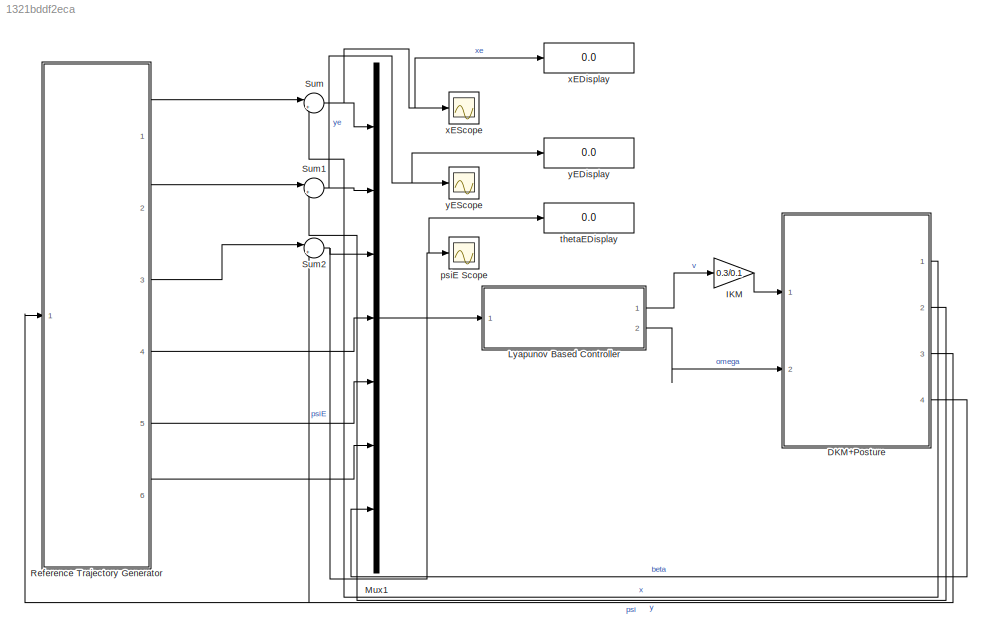
MODEL slx_1321bddf2eca
KIND model
CONFIG AbsTol = auto
CONFIG FixedStep = 0.01
CONFIG MaxStep = auto
CONFIG MinStep = auto
CONFIG RelTol = 1e-3
CONFIG SampleTimeConstraint = Unconstrained
CONFIG Solver = ode3
CONFIG SolverMode = Auto
CONFIG SolverName = ode3
CONFIG StartTime = 0.0
CONFIG StopTime = 50
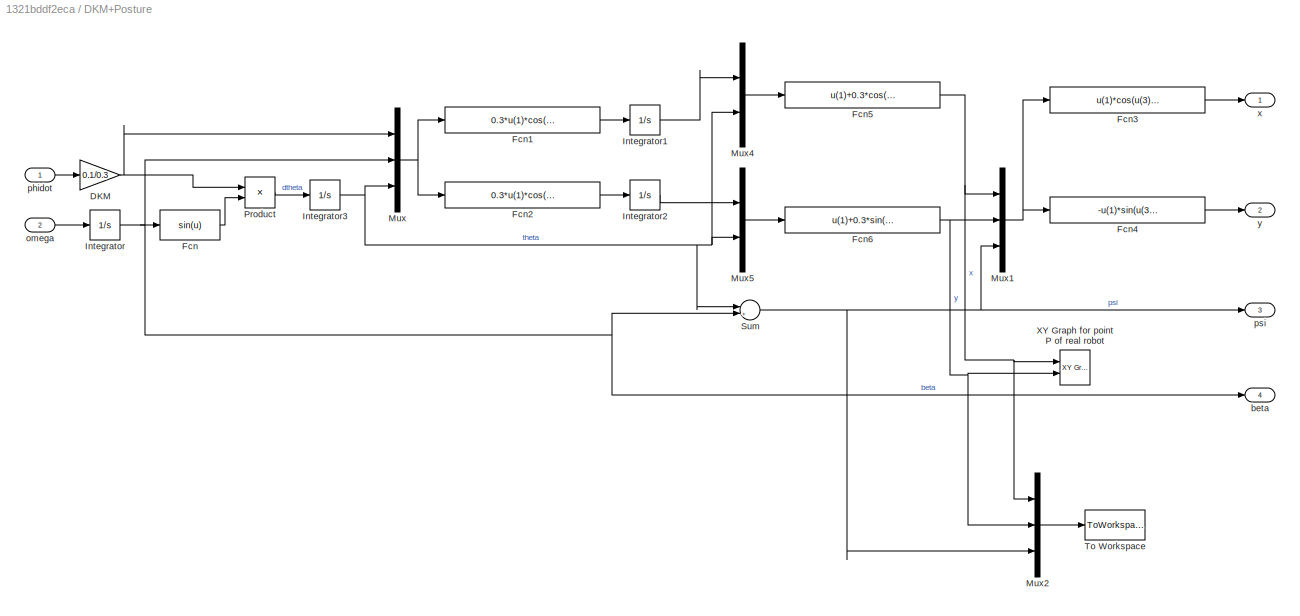
BLOCK [SubSystem] DKM+Posture
  Ports = [2, 4]
  RequestExecContextInheritance = off
BLOCK [Gain] DKM+Posture/DKM
  Gain = 0.1/0.3
  OutDataTypeStr = Inherit: Inherit via internal rule
  ParamDataTypeStr = Inherit: Inherit via internal rule
  SaturateOnIntegerOverflow = off
BLOCK [Fcn] DKM+Posture/Fcn
  Expr = sin(u)
BLOCK [Fcn] DKM+Posture/Fcn1
  Expr = 0.3*u(1)*cos(u(2))*cos(u(3))
BLOCK [Fcn] DKM+Posture/Fcn2
  Expr = 0.3*u(1)*cos(u(2))*sin(u(3))
BLOCK [Fcn] DKM+Posture/Fcn3
  Expr = u(1)*cos(u(3))+u(2)*sin(u(3))+0.3
BLOCK [Fcn] DKM+Posture/Fcn4
  Expr = -u(1)*sin(u(3))+u(2)*cos(u(3))
BLOCK [Fcn] DKM+Posture/Fcn5
  Expr = u(1)+0.3*cos(u(2))
BLOCK [Fcn] DKM+Posture/Fcn6
  Expr = u(1)+0.3*sin(u(2))
BLOCK [Integrator] DKM+Posture/Integrator
  Ports = [1, 1]
BLOCK [Integrator] DKM+Posture/Integrator1
  InitialCondition = 2.3
  Ports = [1, 1]
BLOCK [Integrator] DKM+Posture/Integrator2
  Ports = [1, 1]
BLOCK [Integrator] DKM+Posture/Integrator3
  InitialCondition = pi
  Ports = [1, 1]
BLOCK [Mux] DKM+Posture/Mux
  DisplayOption = bar
  Inputs = 3
  Ports = [3, 1]
BLOCK [Mux] DKM+Posture/Mux1
  DisplayOption = bar
  Inputs = 3
  Ports = [3, 1]
BLOCK [Mux] DKM+Posture/Mux2
  DisplayOption = bar
  Inputs = 3
  Ports = [3, 1]
BLOCK [Mux] DKM+Posture/Mux4
  DisplayOption = bar
  Inputs = 2
  Ports = [2, 1]
BLOCK [Mux] DKM+Posture/Mux5
  DisplayOption = bar
  Inputs = 2
  Ports = [2, 1]
BLOCK [Product] DKM+Posture/Product
  InputSameDT = off
  OutDataTypeStr = Inherit: Inherit via internal rule
  Ports = [2, 1]
  RndMeth = Floor
  SaturateOnIntegerOverflow = off
BLOCK [Sum] DKM+Posture/Sum
  IconShape = round
  InputSameDT = off
  Inputs = |++
  OutDataTypeStr = Inherit: Inherit via internal rule
  Ports = [2, 1]
  SaturateOnIntegerOverflow = off
BLOCK [ToWorkspace] DKM+Posture/To Workspace
  FixptAsFi = on
  MaxDataPoints = inf
  Ports = [1]
  SampleTime = -1
  Save2DSignal = 3-D array (concatenate along third dimension)
  VariableName = output
BLOCK [Reference] DKM+Posture/XY Graph for point P of real robot  REF=simulink/Sinks/XY Graph
  Ports = [2]
  SourceBlock = simulink/Sinks/XY Graph
  SourceType = XY scope.
  st = -1
  xmax = 2
  xmin = -2
  ymax = 2
  ymin = -2
BLOCK [Outport] DKM+Posture/beta
  IconDisplay = Port number
  Port = 4
BLOCK [Inport] DKM+Posture/omega
  IconDisplay = Port number
  Port = 2
BLOCK [Inport] DKM+Posture/phidot
  IconDisplay = Port number
BLOCK [Outport] DKM+Posture/psi
  IconDisplay = Port number
  Port = 3
BLOCK [Outport] DKM+Posture/x
  IconDisplay = Port number
BLOCK [Outport] DKM+Posture/y
  IconDisplay = Port number
  Port = 2
BLOCK [Gain] IKM
  Gain = 0.3/0.1
  OutDataTypeStr = Inherit: Inherit via internal rule
  ParamDataTypeStr = Inherit: Inherit via internal rule
  SaturateOnIntegerOverflow = off
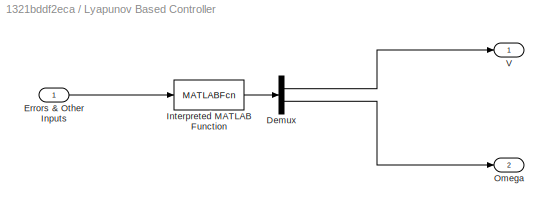
BLOCK [SubSystem] Lyapunov Based Controller
  Ports = [1, 2]
  RequestExecContextInheritance = off
BLOCK [Demux] Lyapunov Based Controller/Demux
  DisplayOption = bar
  Outputs = 2
  Ports = [1, 2]
BLOCK [Inport] Lyapunov Based Controller/Errors & Other Inputs
  IconDisplay = Port number
BLOCK [MATLABFcn] Lyapunov Based Controller/Interpreted MATLAB Function
  MATLABFcn = lyapu(u)
  Ports = [1, 1]
BLOCK [Outport] Lyapunov Based Controller/Omega
  IconDisplay = Port number
  Port = 2
BLOCK [Outport] Lyapunov Based Controller/V
  IconDisplay = Port number
BLOCK [Mux] Mux1
  DisplayOption = bar
  Inputs = 7
  Ports = [7, 1]
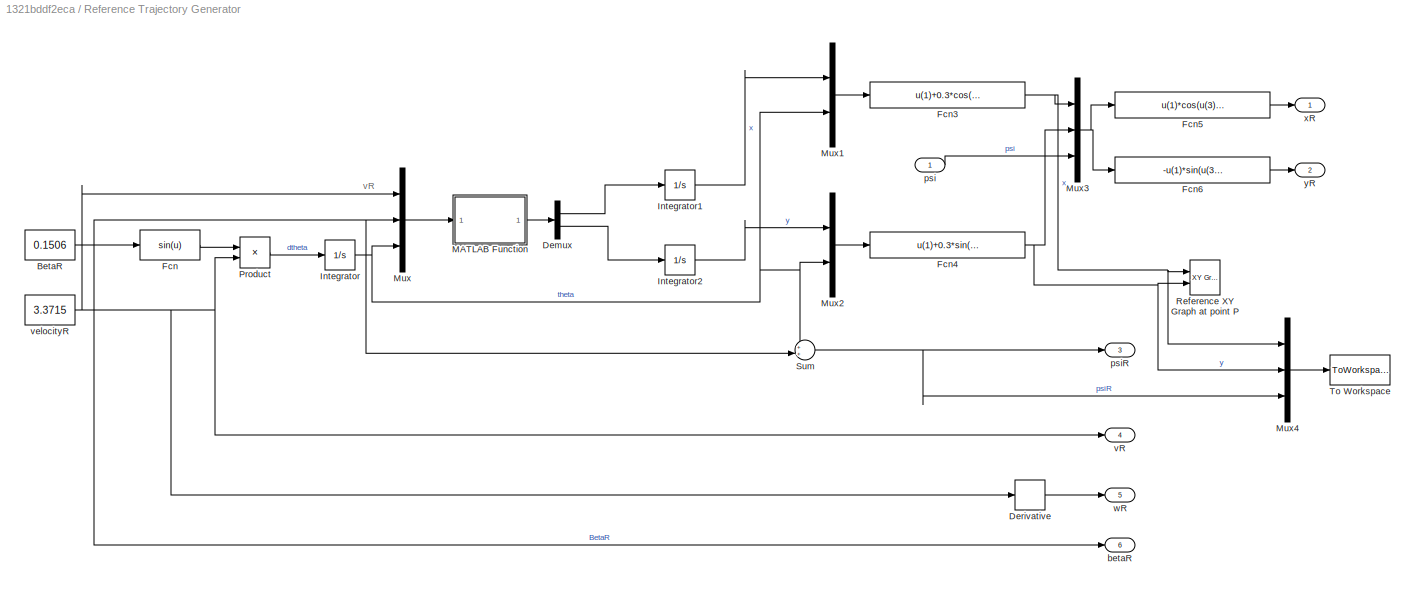
BLOCK [SubSystem] Reference Trajectory Generator
  Ports = [1, 6]
  RequestExecContextInheritance = off
BLOCK [Constant] Reference Trajectory Generator/BetaR
  Value = 0.1506
BLOCK [Demux] Reference Trajectory Generator/Demux
  DisplayOption = bar
  Outputs = 2
  Ports = [1, 2]
BLOCK [Derivative] Reference Trajectory Generator/Derivative
BLOCK [Fcn] Reference Trajectory Generator/Fcn
  Expr = sin(u)
BLOCK [Fcn] Reference Trajectory Generator/Fcn3
  Expr = u(1)+0.3*cos(u(2))
BLOCK [Fcn] Reference Trajectory Generator/Fcn4
  Expr = u(1)+0.3*sin(u(2))
BLOCK [Fcn] Reference Trajectory Generator/Fcn5
  Expr = u(1)*cos(u(3))+u(2)*sin(u(3))
BLOCK [Fcn] Reference Trajectory Generator/Fcn6
  Expr = -u(1)*sin(u(3))+u(2)*cos(u(3))
BLOCK [Integrator] Reference Trajectory Generator/Integrator
  InitialCondition = pi/2
  Ports = [1, 1]
BLOCK [Integrator] Reference Trajectory Generator/Integrator1
  InitialCondition = sqrt(4-0.09)
  Ports = [1, 1]
BLOCK [Integrator] Reference Trajectory Generator/Integrator2
  Ports = [1, 1]
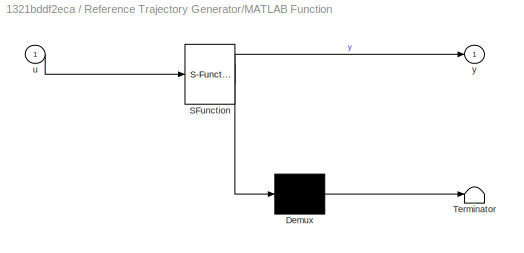
BLOCK [SubSystem] Reference Trajectory Generator/MATLAB Function
  ErrorFcn = Stateflow.Translate.translate
  PermitHierarchicalResolution = ExplicitOnly
  Ports = [1, 1]
  RequestExecContextInheritance = off
  SFBlockType = MATLAB Function
  TreatAsAtomicUnit = on
BLOCK [Demux] Reference Trajectory Generator/MATLAB Function/ Demux 
  Outputs = 1
  Ports = [1, 1]
BLOCK [S-Function] Reference Trajectory Generator/MATLAB Function/ SFunction 
  EnableBusSupport = on
  FunctionName = sf_sfun
  PortCounts = [1 2]
  Ports = [1, 2]
  Tag = Stateflow S-Function lyapunovControl 2
BLOCK [Terminator] Reference Trajectory Generator/MATLAB Function/ Terminator 
BLOCK [Inport] Reference Trajectory Generator/MATLAB Function/u
  IconDisplay = Port number
BLOCK [Outport] Reference Trajectory Generator/MATLAB Function/y
  IconDisplay = Port number
BLOCK [Mux] Reference Trajectory Generator/Mux
  DisplayOption = bar
  Inputs = 3
  Ports = [3, 1]
BLOCK [Mux] Reference Trajectory Generator/Mux1
  DisplayOption = bar
  Inputs = 2
  Ports = [2, 1]
BLOCK [Mux] Reference Trajectory Generator/Mux2
  DisplayOption = bar
  Inputs = 2
  Ports = [2, 1]
BLOCK [Mux] Reference Trajectory Generator/Mux3
  DisplayOption = bar
  Inputs = 3
  Ports = [3, 1]
BLOCK [Mux] Reference Trajectory Generator/Mux4
  DisplayOption = bar
  Inputs = 3
  Ports = [3, 1]
BLOCK [Product] Reference Trajectory Generator/Product
  InputSameDT = off
  OutDataTypeStr = Inherit: Inherit via internal rule
  Ports = [2, 1]
  RndMeth = Floor
  SaturateOnIntegerOverflow = off
BLOCK [Reference] Reference Trajectory Generator/Reference XY Graph at point P  REF=simulink/Sinks/XY Graph
  Ports = [2]
  SourceBlock = simulink/Sinks/XY Graph
  SourceType = XY scope.
  st = -1
  xmax = 2
  xmin = -2
  ymax = 2
  ymin = -2
BLOCK [Sum] Reference Trajectory Generator/Sum
  IconShape = round
  InputSameDT = off
  Inputs = ++|
  OutDataTypeStr = Inherit: Inherit via internal rule
  Ports = [2, 1]
  SaturateOnIntegerOverflow = off
BLOCK [ToWorkspace] Reference Trajectory Generator/To Workspace
  FixptAsFi = on
  MaxDataPoints = inf
  Ports = [1]
  SampleTime = -1
  Save2DSignal = 3-D array (concatenate along third dimension)
  VariableName = input
BLOCK [Outport] Reference Trajectory Generator/betaR
  IconDisplay = Port number
  Port = 6
BLOCK [Inport] Reference Trajectory Generator/psi
  IconDisplay = Port number
BLOCK [Outport] Reference Trajectory Generator/psiR
  IconDisplay = Port number
  Port = 3
BLOCK [Outport] Reference Trajectory Generator/vR
  IconDisplay = Port number
  Port = 4
BLOCK [Constant] Reference Trajectory Generator/velocityR
  Value = 3.3715
BLOCK [Outport] Reference Trajectory Generator/wR
  IconDisplay = Port number
  Port = 5
BLOCK [Outport] Reference Trajectory Generator/xR
  IconDisplay = Port number
BLOCK [Outport] Reference Trajectory Generator/yR
  IconDisplay = Port number
  Port = 2
BLOCK [Sum] Sum
  IconShape = round
  InputSameDT = off
  Inputs = |+-
  OutDataTypeStr = Inherit: Inherit via internal rule
  Ports = [2, 1]
  SaturateOnIntegerOverflow = off
BLOCK [Sum] Sum1
  IconShape = round
  InputSameDT = off
  Inputs = |+-
  OutDataTypeStr = Inherit: Inherit via internal rule
  Ports = [2, 1]
  SaturateOnIntegerOverflow = off
BLOCK [Sum] Sum2
  IconShape = round
  InputSameDT = off
  Inputs = |+-
  OutDataTypeStr = Inherit: Inherit via internal rule
  Ports = [2, 1]
  SaturateOnIntegerOverflow = off
BLOCK [Scope] psiE Scope
  DataFormat = StructureWithTime
  Floating = off
  LimitDataPoints = off
  NumInputPorts = 1
  Ports = [1]
  SaveName = ScopeData2
  YMax = 0.00003
  YMin = -0.00028
BLOCK [Display] thetaEDisplay
  Decimation = 1
  Ports = [1]
BLOCK [Display] xEDisplay
  Decimation = 1
  Ports = [1]
BLOCK [Scope] xEScope
  DataFormat = StructureWithTime
  Floating = off
  LimitDataPoints = off
  NumInputPorts = 1
  Ports = [1]
  YMax = 0.6854
  YMin = -0.51889
BLOCK [Display] yEDisplay
  Decimation = 1
  Ports = [1]
BLOCK [Scope] yEScope
  DataFormat = StructureWithTime
  Floating = off
  LimitDataPoints = off
  NumInputPorts = 1
  Ports = [1]
  SaveName = ScopeData1
  YMax = 0.53837
  YMin = -1.94871
ANNOTATION Reference Trajectory Generator: vR
NET DKM+Posture/DKM:1 -> DKM+Posture/Mux:1, DKM+Posture/Product:1
LINE DKM+Posture/Fcn1:1 -> DKM+Posture/Integrator1:1
LINE DKM+Posture/Fcn2:1 -> DKM+Posture/Integrator2:1
LINE DKM+Posture/Fcn3:1 -> DKM+Posture/x:1
LINE DKM+Posture/Fcn4:1 -> DKM+Posture/y:1
NET DKM+Posture/Fcn5:1 -> DKM+Posture/Mux1:1, DKM+Posture/Mux2:1, DKM+Posture/XY Graph for point P of real robot:1
NET DKM+Posture/Fcn6:1 -> DKM+Posture/Mux1:2, DKM+Posture/Mux2:2, DKM+Posture/XY Graph for point P of real robot:2
LINE DKM+Posture/Fcn:1 -> DKM+Posture/Product:2
LINE DKM+Posture/Integrator1:1 -> DKM+Posture/Mux4:1
LINE DKM+Posture/Integrator2:1 -> DKM+Posture/Mux5:1
NET DKM+Posture/Integrator3:1 -> DKM+Posture/Mux4:2, DKM+Posture/Mux5:2, DKM+Posture/Mux:3, DKM+Posture/Sum:1
NET DKM+Posture/Integrator:1 -> DKM+Posture/Fcn:1, DKM+Posture/Mux:2, DKM+Posture/Sum:2, DKM+Posture/beta:1
NET DKM+Posture/Mux1:1 -> DKM+Posture/Fcn3:1, DKM+Posture/Fcn4:1
LINE DKM+Posture/Mux2:1 -> DKM+Posture/To Workspace:1
LINE DKM+Posture/Mux4:1 -> DKM+Posture/Fcn5:1
LINE DKM+Posture/Mux5:1 -> DKM+Posture/Fcn6:1
NET DKM+Posture/Mux:1 -> DKM+Posture/Fcn1:1, DKM+Posture/Fcn2:1
LINE DKM+Posture/Product:1 -> DKM+Posture/Integrator3:1
NET DKM+Posture/Sum:1 -> DKM+Posture/Mux1:3, DKM+Posture/Mux2:3, DKM+Posture/psi:1
LINE DKM+Posture/omega:1 -> DKM+Posture/Integrator:1
LINE DKM+Posture/phidot:1 -> DKM+Posture/DKM:1
LINE DKM+Posture:1 -> Sum:2
LINE DKM+Posture:2 -> Sum1:2
NET DKM+Posture:3 -> Reference Trajectory Generator:1, Sum2:2
LINE DKM+Posture:4 -> Mux1:7
LINE IKM:1 -> DKM+Posture:1
LINE Lyapunov Based Controller/Demux:1 -> Lyapunov Based Controller/V:1
LINE Lyapunov Based Controller/Demux:2 -> Lyapunov Based Controller/Omega:1
LINE Lyapunov Based Controller/Errors & Other Inputs:1 -> Lyapunov Based Controller/Interpreted MATLAB Function:1
LINE Lyapunov Based Controller/Interpreted MATLAB Function:1 -> Lyapunov Based Controller/Demux:1
LINE Lyapunov Based Controller:1 -> IKM:1
LINE Lyapunov Based Controller:2 -> DKM+Posture:2
LINE Mux1:1 -> Lyapunov Based Controller:1
NET Reference Trajectory Generator/BetaR:1 -> Reference Trajectory Generator/Fcn:1, Reference Trajectory Generator/Mux:2, Reference Trajectory Generator/Sum:2, Reference Trajectory Generator/betaR:1
LINE Reference Trajectory Generator/Demux:1 -> Reference Trajectory Generator/Integrator1:1
LINE Reference Trajectory Generator/Demux:2 -> Reference Trajectory Generator/Integrator2:1
LINE Reference Trajectory Generator/Derivative:1 -> Reference Trajectory Generator/wR:1
NET Reference Trajectory Generator/Fcn3:1 -> Reference Trajectory Generator/Mux3:1, Reference Trajectory Generator/Mux4:1, Reference Trajectory Generator/Reference XY Graph at point P:1
NET Reference Trajectory Generator/Fcn4:1 -> Reference Trajectory Generator/Mux3:2, Reference Trajectory Generator/Mux4:2, Reference Trajectory Generator/Reference XY Graph at point P:2
LINE Reference Trajectory Generator/Fcn5:1 -> Reference Trajectory Generator/xR:1
LINE Reference Trajectory Generator/Fcn6:1 -> Reference Trajectory Generator/yR:1
LINE Reference Trajectory Generator/Fcn:1 -> Reference Trajectory Generator/Product:1
LINE Reference Trajectory Generator/Integrator1:1 -> Reference Trajectory Generator/Mux1:1
LINE Reference Trajectory Generator/Integrator2:1 -> Reference Trajectory Generator/Mux2:1
NET Reference Trajectory Generator/Integrator:1 -> Reference Trajectory Generator/Mux1:2, Reference Trajectory Generator/Mux2:2, Reference Trajectory Generator/Mux:3, Reference Trajectory Generator/Sum:1
LINE Reference Trajectory Generator/MATLAB Function:1 -> Reference Trajectory Generator/Demux:1
LINE Reference Trajectory Generator/Mux1:1 -> Reference Trajectory Generator/Fcn3:1
LINE Reference Trajectory Generator/Mux2:1 -> Reference Trajectory Generator/Fcn4:1
NET Reference Trajectory Generator/Mux3:1 -> Reference Trajectory Generator/Fcn5:1, Reference Trajectory Generator/Fcn6:1
LINE Reference Trajectory Generator/Mux4:1 -> Reference Trajectory Generator/To Workspace:1
LINE Reference Trajectory Generator/Mux:1 -> Reference Trajectory Generator/MATLAB Function:1
LINE Reference Trajectory Generator/Product:1 -> Reference Trajectory Generator/Integrator:1
NET Reference Trajectory Generator/Sum:1 -> Reference Trajectory Generator/Mux4:3, Reference Trajectory Generator/psiR:1
LINE Reference Trajectory Generator/psi:1 -> Reference Trajectory Generator/Mux3:3
NET Reference Trajectory Generator/velocityR:1 -> Reference Trajectory Generator/Derivative:1, Reference Trajectory Generator/Mux:1, Reference Trajectory Generator/Product:2, Reference Trajectory Generator/vR:1
LINE Reference Trajectory Generator:1 -> Sum:1
LINE Reference Trajectory Generator:2 -> Sum1:1
LINE Reference Trajectory Generator:3 -> Sum2:1
LINE Reference Trajectory Generator:4 -> Mux1:4
LINE Reference Trajectory Generator:5 -> Mux1:5
LINE Reference Trajectory Generator:6 -> Mux1:6
NET Sum1:1 -> Mux1:2, yEDisplay:1, yEScope:1
NET Sum2:1 -> Mux1:3, psiE Scope:1, thetaEDisplay:1
NET Sum:1 -> Mux1:1, xEDisplay:1, xEScope:1
note: NET lines group one-source signal fan-out (src -> all destinations, sorted); 1:1 wires keep LINE
CHART Reference Trajectory 
Generator/MATLAB Function states=1 transitions=1
  STATE_LABEL 'eML_blk_kernel()'
  STATE_LABEL 'SCRIPT:\nfunction y = fcn(u)\n%#codegen\na=0.3;\ny=zeros(2,1);\ny(1)=a*u(1)*cos(u(2))*cos(u(3));\ny(2)=a*u(1)*cos(u(2))*sin(u(3));\ny=y(:);\n'
